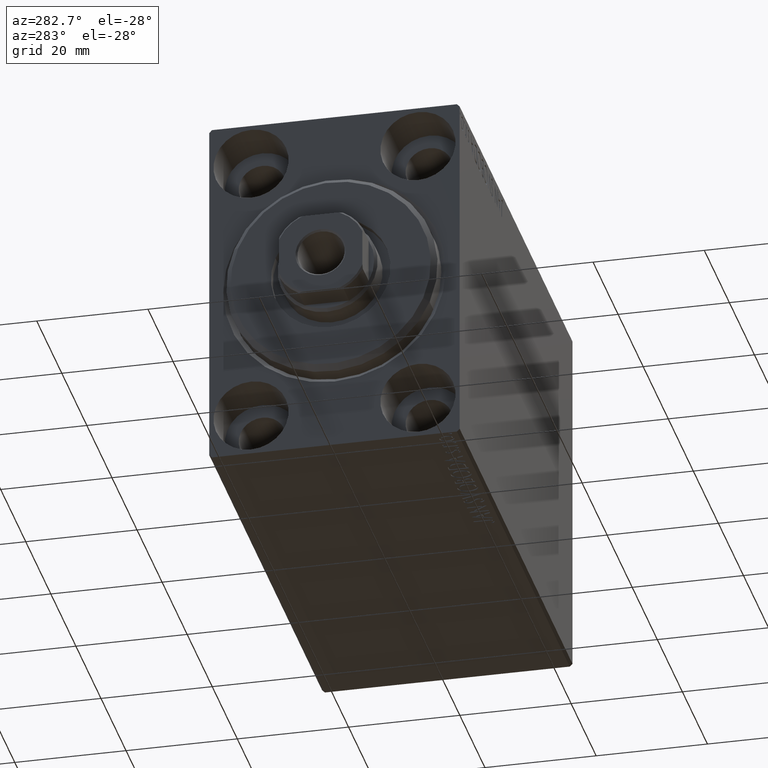
[diagram: clean part render]
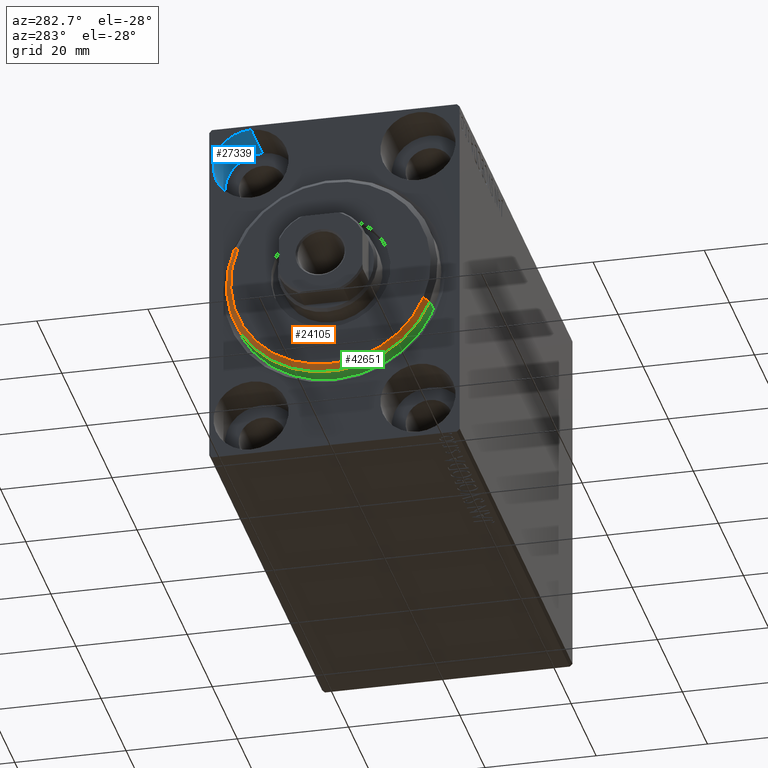
[diagram: same view with three faces highlighted in distinct colors, each labeled with its STEP entity id]
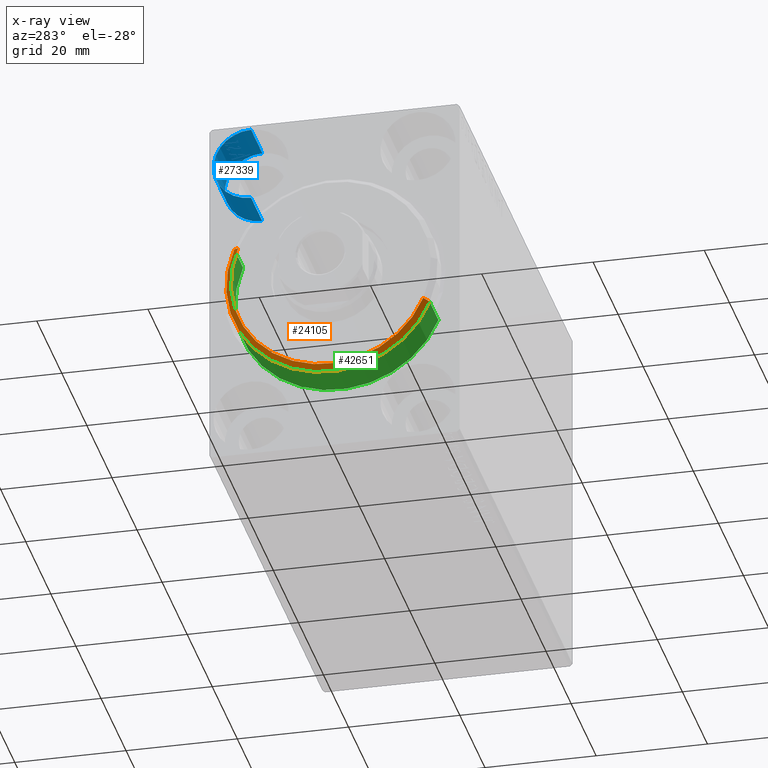
[diagram: x-ray of the same camera — body ghosted, the three highlighted faces saturated]
A machine part, auxiliary view with three faces highlighted in distinct colors.
The next image is the same camera in x-ray (body ghosted, the three faces saturated) — at least one of them is partly hidden behind the body in this view.
Their STEP definitions:

[orange] entity #24105 — the highlighted conical surface has half-angle 45 deg.
#262 = VERTEX_POINT ( 'NONE', #8594 ) ;
#2614 = EDGE_CURVE ( 'NONE', #262, #12987, #15445, .T. ) ;
#3702 = VECTOR ( 'NONE', #28969, 1000.000000000000000 ) ;
#4607 = DIRECTION ( 'NONE',  ( 1.000000000000000000, -0.000000000000000000, 0.000000000000000000 ) ) ;
#7582 = CARTESIAN_POINT ( 'NONE',  ( 3.000000000000000000, 0.000000000000000000, 17.99999999999999645 ) ) ;
#8594 = CARTESIAN_POINT ( 'NONE',  ( 3.000000000000000000, 2.265596578422603002E-15, -17.99999999999999645 ) ) ;
#11463 = EDGE_CURVE ( 'NONE', #41504, #39914, #23141, .T. ) ;
#11733 = FACE_OUTER_BOUND ( 'NONE', #37998, .T. ) ;
#12536 = ORIENTED_EDGE ( 'NONE', *, *, #31939, .F. ) ;
#12987 = VERTEX_POINT ( 'NONE', #33814 ) ;
#13089 = ORIENTED_EDGE ( 'NONE', *, *, #11463, .F. ) ;
#14406 = CIRCLE ( 'NONE', #25030, 17.99999999999999645 ) ;
#15445 = LINE ( 'NONE', #42034, #3702 ) ;
#16916 = CARTESIAN_POINT ( 'NONE',  ( 3.000000000000000000, 0.000000000000000000, 17.99999999999999645 ) ) ;
#17693 = DIRECTION ( 'NONE',  ( 0.000000000000000000, 0.000000000000000000, -1.000000000000000000 ) ) ;
#17927 = DIRECTION ( 'NONE',  ( -1.000000000000000000, 0.000000000000000000, 0.000000000000000000 ) ) ;
#18319 = CONICAL_SURFACE ( 'NONE', #43094, 17.99999999999999645, 0.7853981633974466137 ) ;
#21260 = CARTESIAN_POINT ( 'NONE',  ( 1.999999999999992228, 0.000000000000000000, 0.000000000000000000 ) ) ;
#23141 = LINE ( 'NONE', #16916, #42198 ) ;
#24105 = ADVANCED_FACE ( 'NONE', ( #11733 ), #18319, .T. ) ;
#24901 = CIRCLE ( 'NONE', #39040, 19.00000000000000000 ) ;
#25030 = AXIS2_PLACEMENT_3D ( 'NONE', #30791, #4607, #17693 ) ;
#25689 = DIRECTION ( 'NONE',  ( 0.000000000000000000, 0.000000000000000000, 1.000000000000000000 ) ) ;
#28969 = DIRECTION ( 'NONE',  ( -0.7071067811865487940, 8.659560562354918067E-17, -0.7071067811865463515 ) ) ;
#30013 = DIRECTION ( 'NONE',  ( -0.7071067811865487940, 0.000000000000000000, 0.7071067811865463515 ) ) ;
#30791 = CARTESIAN_POINT ( 'NONE',  ( 3.000000000000000000, 0.000000000000000000, 0.000000000000000000 ) ) ;
#31457 = DIRECTION ( 'NONE',  ( 0.000000000000000000, 0.000000000000000000, -1.000000000000000000 ) ) ;
#31939 = EDGE_CURVE ( 'NONE', #39914, #12987, #24901, .T. ) ;
#33570 = ORIENTED_EDGE ( 'NONE', *, *, #37151, .F. ) ;
#33814 = CARTESIAN_POINT ( 'NONE',  ( 1.999999999999992228, 2.326828918379970970E-15, -19.00000000000000000 ) ) ;
#35646 = CARTESIAN_POINT ( 'NONE',  ( 3.000000000000000000, 0.000000000000000000, 0.000000000000000000 ) ) ;
#36850 = ORIENTED_EDGE ( 'NONE', *, *, #2614, .T. ) ;
#37151 = EDGE_CURVE ( 'NONE', #262, #41504, #14406, .T. ) ;
#37998 = EDGE_LOOP ( 'NONE', ( #33570, #36850, #12536, #13089 ) ) ;
#39040 = AXIS2_PLACEMENT_3D ( 'NONE', #21260, #17927, #31457 ) ;
#39072 = CARTESIAN_POINT ( 'NONE',  ( 1.999999999999992228, 0.000000000000000000, 19.00000000000000000 ) ) ;
#39414 = DIRECTION ( 'NONE',  ( -1.000000000000000000, 0.000000000000000000, 0.000000000000000000 ) ) ;
#39914 = VERTEX_POINT ( 'NONE', #39072 ) ;
#41504 = VERTEX_POINT ( 'NONE', #7582 ) ;
#42034 = CARTESIAN_POINT ( 'NONE',  ( 3.000000000000000000, 2.204364238465235033E-15, -17.99999999999999645 ) ) ;
#42198 = VECTOR ( 'NONE', #30013, 1000.000000000000000 ) ;
#43094 = AXIS2_PLACEMENT_3D ( 'NONE', #35646, #39414, #25689 ) ;

[blue] entity #27339 — the highlighted cylindrical surface (partial cylindrical patch) has radius 6.75 mm, axis along (-1, -0, -0).
#1570 = FACE_OUTER_BOUND ( 'NONE', #6161, .T. ) ;
#1861 = CARTESIAN_POINT ( 'NONE',  ( 9.000000000000000000, 15.00000000000000355, 31.75000000000000000 ) ) ;
#2005 = AXIS2_PLACEMENT_3D ( 'NONE', #19072, #2231, #39679 ) ;
#2231 = DIRECTION ( 'NONE',  ( -1.000000000000000000, 0.000000000000000000, 0.000000000000000000 ) ) ;
#4244 = VECTOR ( 'NONE', #14701, 1000.000000000000000 ) ;
#6161 = EDGE_LOOP ( 'NONE', ( #24788, #21916, #31387, #18294 ) ) ;
#6704 = CARTESIAN_POINT ( 'NONE',  ( 0.000000000000000000, 15.00000000000000355, 18.25000000000000355 ) ) ;
#8037 = AXIS2_PLACEMENT_3D ( 'NONE', #25983, #19326, #42575 ) ;
#9809 = CIRCLE ( 'NONE', #2005, 6.749999999999999112 ) ;
#14701 = DIRECTION ( 'NONE',  ( -1.000000000000000000, -0.000000000000000000, -0.000000000000000000 ) ) ;
#16898 = EDGE_CURVE ( 'NONE', #26187, #31317, #9809, .T. ) ;
#18294 = ORIENTED_EDGE ( 'NONE', *, *, #41123, .T. ) ;
#19072 = CARTESIAN_POINT ( 'NONE',  ( 9.000000000000000000, 15.00000000000000355, 25.00000000000000000 ) ) ;
#19147 = DIRECTION ( 'NONE',  ( -1.000000000000000000, -0.000000000000000000, -0.000000000000000000 ) ) ;
#19326 = DIRECTION ( 'NONE',  ( -1.000000000000000000, 0.000000000000000000, 0.000000000000000000 ) ) ;
#19378 = CIRCLE ( 'NONE', #8037, 6.749999999999999112 ) ;
#20617 = VERTEX_POINT ( 'NONE', #24236 ) ;
#21190 = CARTESIAN_POINT ( 'NONE',  ( 9.000000000000000000, 15.00000000000000355, 31.75000000000000000 ) ) ;
#21916 = ORIENTED_EDGE ( 'NONE', *, *, #16898, .F. ) ;
#24100 = AXIS2_PLACEMENT_3D ( 'NONE', #31064, #35468, #34601 ) ;
#24236 = CARTESIAN_POINT ( 'NONE',  ( 0.000000000000000000, 15.00000000000000355, 31.75000000000000000 ) ) ;
#24634 = CYLINDRICAL_SURFACE ( 'NONE', #24100, 6.749999999999999112 ) ;
#24788 = ORIENTED_EDGE ( 'NONE', *, *, #26490, .F. ) ;
#24819 = EDGE_CURVE ( 'NONE', #26187, #20617, #39309, .T. ) ;
#25983 = CARTESIAN_POINT ( 'NONE',  ( 0.000000000000000000, 15.00000000000000355, 25.00000000000000000 ) ) ;
#26187 = VERTEX_POINT ( 'NONE', #21190 ) ;
#26490 = EDGE_CURVE ( 'NONE', #31317, #26556, #34649, .T. ) ;
#26556 = VERTEX_POINT ( 'NONE', #6704 ) ;
#27339 = ADVANCED_FACE ( 'NONE', ( #1570 ), #24634, .F. ) ;
#31064 = CARTESIAN_POINT ( 'NONE',  ( 9.000000000000000000, 15.00000000000000355, 25.00000000000000000 ) ) ;
#31108 = VECTOR ( 'NONE', #19147, 1000.000000000000000 ) ;
#31317 = VERTEX_POINT ( 'NONE', #43155 ) ;
#31387 = ORIENTED_EDGE ( 'NONE', *, *, #24819, .T. ) ;
#34601 = DIRECTION ( 'NONE',  ( 0.000000000000000000, 0.000000000000000000, 1.000000000000000000 ) ) ;
#34649 = LINE ( 'NONE', #41502, #4244 ) ;
#35468 = DIRECTION ( 'NONE',  ( -1.000000000000000000, -0.000000000000000000, -0.000000000000000000 ) ) ;
#39309 = LINE ( 'NONE', #1861, #31108 ) ;
#39679 = DIRECTION ( 'NONE',  ( 0.000000000000000000, 0.000000000000000000, 1.000000000000000000 ) ) ;
#41123 = EDGE_CURVE ( 'NONE', #20617, #26556, #19378, .T. ) ;
#41502 = CARTESIAN_POINT ( 'NONE',  ( 9.000000000000000000, 15.00000000000000355, 18.25000000000000355 ) ) ;
#42575 = DIRECTION ( 'NONE',  ( 0.000000000000000000, 0.000000000000000000, 1.000000000000000000 ) ) ;
#43155 = CARTESIAN_POINT ( 'NONE',  ( 9.000000000000000000, 15.00000000000000355, 18.25000000000000355 ) ) ;

[green] entity #42651 — the highlighted cylindrical surface (partial cylindrical patch) has radius 19 mm, axis along (1, 0, 0).
#263 = EDGE_CURVE ( 'NONE', #12987, #38338, #16288, .T. ) ;
#3027 = CARTESIAN_POINT ( 'NONE',  ( 3.000000000000000000, 0.000000000000000000, 19.00000000000000000 ) ) ;
#3537 = CIRCLE ( 'NONE', #43854, 19.00000000000000000 ) ;
#4172 = CYLINDRICAL_SURFACE ( 'NONE', #26504, 19.00000000000000000 ) ;
#8378 = CARTESIAN_POINT ( 'NONE',  ( 3.000000000000000000, 2.326828918379970970E-15, -19.00000000000000000 ) ) ;
#11410 = DIRECTION ( 'NONE',  ( -1.000000000000000000, -0.000000000000000000, -0.000000000000000000 ) ) ;
#12987 = VERTEX_POINT ( 'NONE', #33814 ) ;
#13297 = CARTESIAN_POINT ( 'NONE',  ( 3.000000000000000000, 0.000000000000000000, 0.000000000000000000 ) ) ;
#16288 = LINE ( 'NONE', #8378, #24889 ) ;
#16822 = DIRECTION ( 'NONE',  ( -1.000000000000000000, -0.000000000000000000, -0.000000000000000000 ) ) ;
#17927 = DIRECTION ( 'NONE',  ( -1.000000000000000000, 0.000000000000000000, 0.000000000000000000 ) ) ;
#18961 = EDGE_LOOP ( 'NONE', ( #21531, #39773, #32919, #42323 ) ) ;
#19869 = LINE ( 'NONE', #3027, #39099 ) ;
#21024 = FACE_OUTER_BOUND ( 'NONE', #18961, .T. ) ;
#21260 = CARTESIAN_POINT ( 'NONE',  ( 1.999999999999992228, 0.000000000000000000, 0.000000000000000000 ) ) ;
#21531 = ORIENTED_EDGE ( 'NONE', *, *, #31939, .T. ) ;
#21627 = EDGE_CURVE ( 'NONE', #42791, #38338, #3537, .T. ) ;
#24889 = VECTOR ( 'NONE', #42047, 1000.000000000000000 ) ;
#24901 = CIRCLE ( 'NONE', #39040, 19.00000000000000000 ) ;
#26504 = AXIS2_PLACEMENT_3D ( 'NONE', #13297, #16822, #26808 ) ;
#26808 = DIRECTION ( 'NONE',  ( 0.000000000000000000, 0.000000000000000000, 1.000000000000000000 ) ) ;
#28752 = CARTESIAN_POINT ( 'NONE',  ( -5.000000000000000000, 0.000000000000000000, 19.00000000000000000 ) ) ;
#31265 = DIRECTION ( 'NONE',  ( -1.000000000000000000, 0.000000000000000000, 0.000000000000000000 ) ) ;
#31457 = DIRECTION ( 'NONE',  ( 0.000000000000000000, 0.000000000000000000, -1.000000000000000000 ) ) ;
#31939 = EDGE_CURVE ( 'NONE', #39914, #12987, #24901, .T. ) ;
#32919 = ORIENTED_EDGE ( 'NONE', *, *, #21627, .F. ) ;
#33719 = EDGE_CURVE ( 'NONE', #39914, #42791, #19869, .T. ) ;
#33814 = CARTESIAN_POINT ( 'NONE',  ( 1.999999999999992228, 2.326828918379970970E-15, -19.00000000000000000 ) ) ;
#34582 = CARTESIAN_POINT ( 'NONE',  ( -5.000000000000000000, 0.000000000000000000, 0.000000000000000000 ) ) ;
#36865 = CARTESIAN_POINT ( 'NONE',  ( -5.000000000000000000, 2.326828918379970970E-15, -19.00000000000000000 ) ) ;
#38338 = VERTEX_POINT ( 'NONE', #36865 ) ;
#39040 = AXIS2_PLACEMENT_3D ( 'NONE', #21260, #17927, #31457 ) ;
#39072 = CARTESIAN_POINT ( 'NONE',  ( 1.999999999999992228, 0.000000000000000000, 19.00000000000000000 ) ) ;
#39099 = VECTOR ( 'NONE', #11410, 1000.000000000000000 ) ;
#39773 = ORIENTED_EDGE ( 'NONE', *, *, #263, .T. ) ;
#39914 = VERTEX_POINT ( 'NONE', #39072 ) ;
#41654 = DIRECTION ( 'NONE',  ( 0.000000000000000000, 0.000000000000000000, 1.000000000000000000 ) ) ;
#42047 = DIRECTION ( 'NONE',  ( -1.000000000000000000, -0.000000000000000000, -0.000000000000000000 ) ) ;
#42323 = ORIENTED_EDGE ( 'NONE', *, *, #33719, .F. ) ;
#42651 = ADVANCED_FACE ( 'NONE', ( #21024 ), #4172, .T. ) ;
#42791 = VERTEX_POINT ( 'NONE', #28752 ) ;
#43854 = AXIS2_PLACEMENT_3D ( 'NONE', #34582, #31265, #41654 ) ;